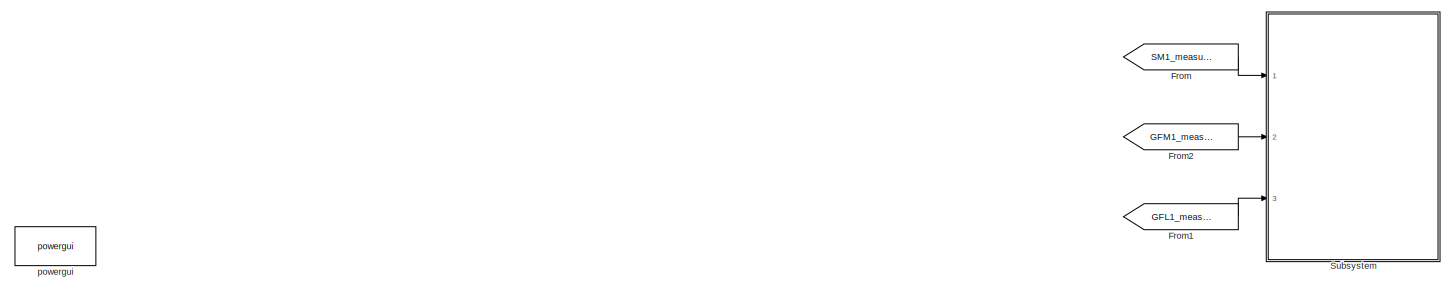
[diagram: root canvas - part 1/7, top center region]
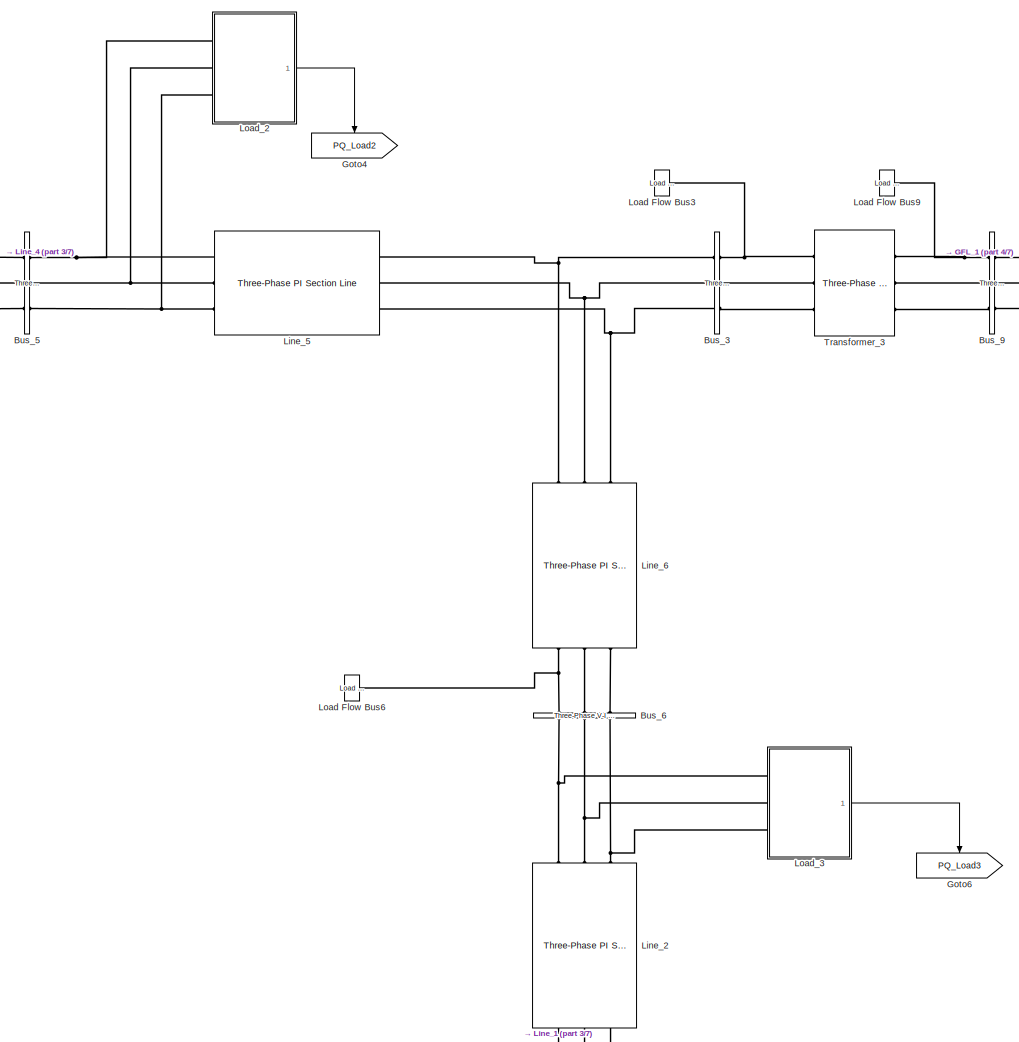
[diagram: root canvas - part 2/7, middle right region]
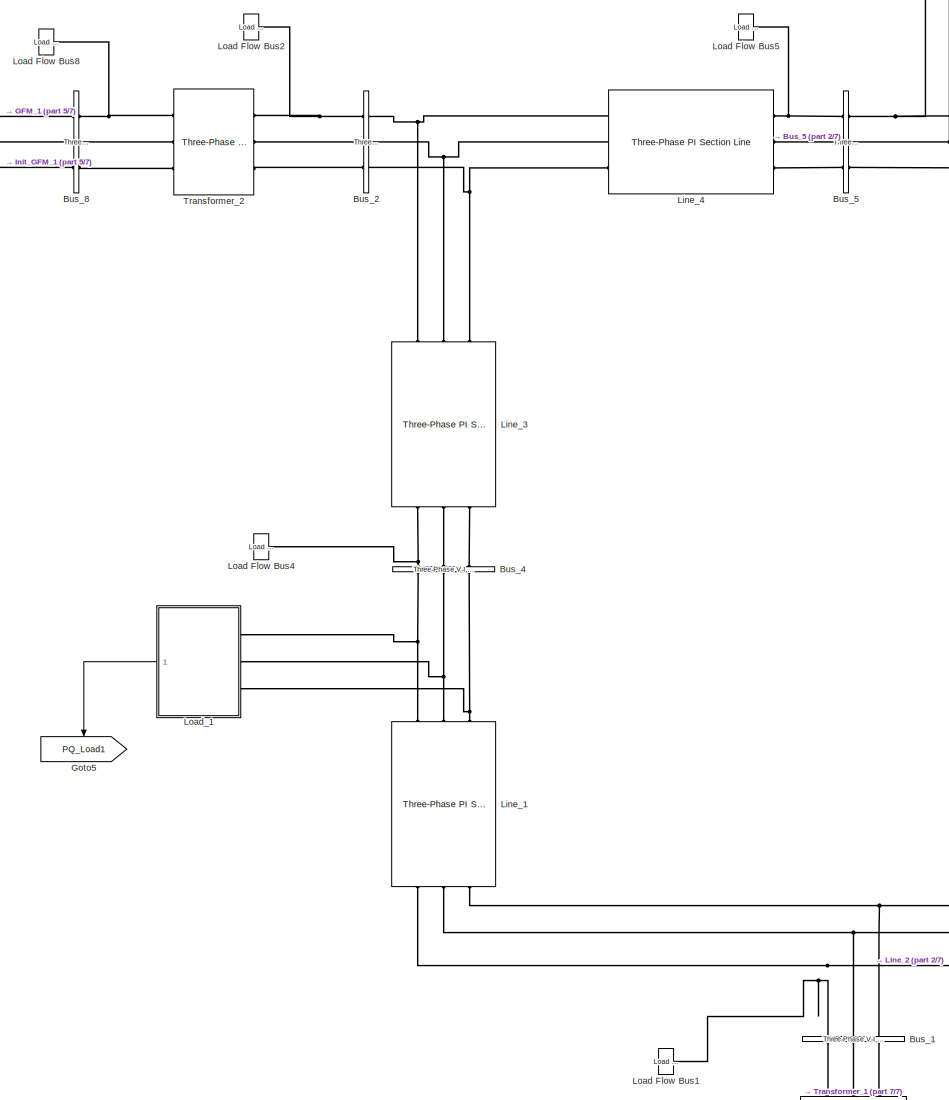
[diagram: root canvas - part 3/7, central region]
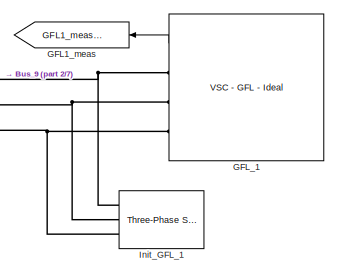
[diagram: root canvas - part 4/7, middle right region]
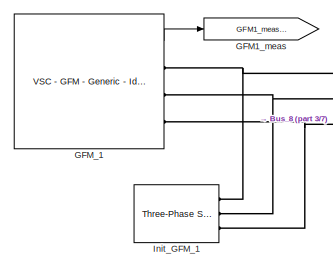
[diagram: root canvas - part 5/7, middle left region]
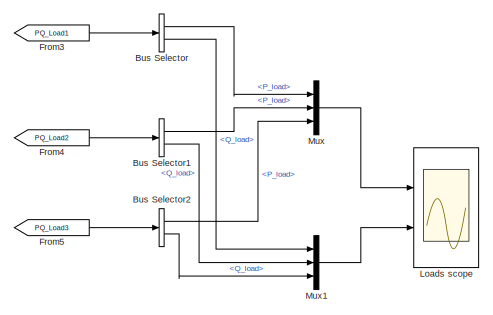
[diagram: root canvas - part 6/7, bottom left region]
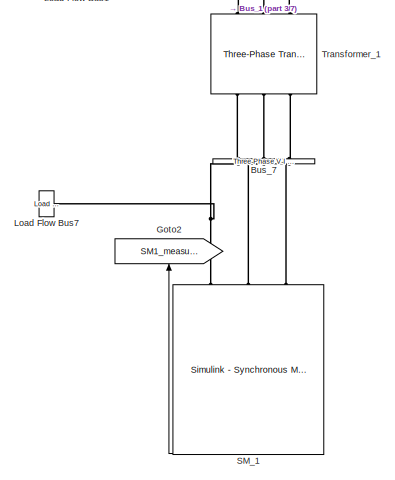
[diagram: root canvas - part 7/7, bottom center region]
MODEL slx_f622fb1c2d94
KIND model
CONFIG AbsTol = auto
CONFIG EnableMultiTasking = off
CONFIG FixedStep = auto
CONFIG MaxStep = auto
CONFIG MinStep = auto
CONFIG RelTol = 1e-3
CONFIG SampleTimeConstraint = Unconstrained
CONFIG SolverName = VariableStepAuto
CONFIG StartTime = 0.0
CONFIG StopTime = simlt.T_stop
BLOCK [BusSelector] Bus Selector
  OutputSignals = P_load,Q_load
  Ports = [1, 2]
BLOCK [BusSelector] Bus Selector1
  OutputSignals = P_load,Q_load
  Ports = [1, 2]
BLOCK [BusSelector] Bus Selector2
  OutputSignals = P_load,Q_load
  Ports = [1, 2]
BLOCK [Reference] Bus_1  REF=powerlib/Measurements/Three-Phase
V-I Measurement
  NameLocation = left
  Ports = [0, 0, 0, 0, 0, 3, 3]
  SourceBlock = powerlib/Measurements/Three-Phase\nV-I Measurement
  SourceProductBaseCode = PS
  SourceType = Three-Phase VI Measurement
BLOCK [Reference] Bus_2  REF=powerlib/Measurements/Three-Phase
V-I Measurement
  Ports = [0, 0, 0, 0, 0, 3, 3]
  SourceBlock = powerlib/Measurements/Three-Phase\nV-I Measurement
  SourceProductBaseCode = PS
  SourceType = Three-Phase VI Measurement
BLOCK [Reference] Bus_3  REF=powerlib/Measurements/Three-Phase
V-I Measurement
  Ports = [0, 0, 0, 0, 0, 3, 3]
  SourceBlock = powerlib/Measurements/Three-Phase\nV-I Measurement
  SourceProductBaseCode = PS
  SourceType = Three-Phase VI Measurement
BLOCK [Reference] Bus_4  REF=powerlib/Measurements/Three-Phase
V-I Measurement
  NameLocation = left
  Ports = [0, 0, 0, 0, 0, 3, 3]
  SourceBlock = powerlib/Measurements/Three-Phase\nV-I Measurement
  SourceProductBaseCode = PS
  SourceType = Three-Phase VI Measurement
BLOCK [Reference] Bus_5  REF=powerlib/Measurements/Three-Phase
V-I Measurement
  Ports = [0, 0, 0, 0, 0, 3, 3]
  SourceBlock = powerlib/Measurements/Three-Phase\nV-I Measurement
  SourceProductBaseCode = PS
  SourceType = Three-Phase VI Measurement
BLOCK [Reference] Bus_6  REF=powerlib/Measurements/Three-Phase
V-I Measurement
  NameLocation = left
  Ports = [0, 0, 0, 0, 0, 3, 3]
  SourceBlock = powerlib/Measurements/Three-Phase\nV-I Measurement
  SourceProductBaseCode = PS
  SourceType = Three-Phase VI Measurement
BLOCK [Reference] Bus_7  REF=powerlib/Measurements/Three-Phase
V-I Measurement
  NameLocation = left
  Ports = [0, 0, 0, 0, 0, 3, 3]
  SourceBlock = powerlib/Measurements/Three-Phase\nV-I Measurement
  SourceProductBaseCode = PS
  SourceType = Three-Phase VI Measurement
BLOCK [Reference] Bus_8  REF=powerlib/Measurements/Three-Phase
V-I Measurement
  Ports = [0, 0, 0, 0, 0, 3, 3]
  SourceBlock = powerlib/Measurements/Three-Phase\nV-I Measurement
  SourceProductBaseCode = PS
  SourceType = Three-Phase VI Measurement
BLOCK [Reference] Bus_9  REF=powerlib/Measurements/Three-Phase
V-I Measurement
  Ports = [0, 0, 0, 0, 0, 3, 3]
  SourceBlock = powerlib/Measurements/Three-Phase\nV-I Measurement
  SourceProductBaseCode = PS
  SourceType = Three-Phase VI Measurement
BLOCK [From] From
  GotoTag = SM1_measurements
BLOCK [From] From1
  GotoTag = GFL1_measurements
  NameLocation = top
BLOCK [From] From2
  GotoTag = GFM1_measurements
  NameLocation = top
BLOCK [From] From3
  GotoTag = PQ_Load1
  NameLocation = top
BLOCK [From] From4
  GotoTag = PQ_Load2
  NameLocation = top
BLOCK [From] From5
  GotoTag = PQ_Load3
  NameLocation = top
BLOCK [Goto] GFL1_meas
  GotoTag = GFL1_measurements
  NameLocation = top
BLOCK [Reference] GFL_1  REF=G2ELib_V1/DC//AC Converters/Voltage Source Converters (VSC)/Grid-Following VSC (GFL)/VSC - GFL - Ideal
  Ports = [0, 1, 0, 0, 0, 0, 3]
  SourceBlock = G2ELib_V1/DC//AC Converters/Voltage Source Converters (VSC)/Grid-Following VSC (GFL)/VSC - GFL - Ideal
BLOCK [Goto] GFM1_meas
  GotoTag = GFM1_measurements
  NameLocation = top
BLOCK [Reference] GFM_1  REF=G2ELib_V1/DC//AC Converters/Voltage Source Converters (VSC)/Grid-Forming VSC (GFM)/VSC - GFM - Generic - Ideal
  Ports = [0, 1, 0, 0, 0, 0, 3]
  SourceBlock = G2ELib_V1/DC//AC Converters/Voltage Source Converters (VSC)/Grid-Forming VSC (GFM)/VSC - GFM - Generic - Ideal
BLOCK [Goto] Goto2
  GotoTag = SM1_measurements
  NameLocation = right
BLOCK [Goto] Goto4
  GotoTag = PQ_Load2
  NameLocation = right
BLOCK [Goto] Goto5
  GotoTag = PQ_Load1
  NameLocation = right
BLOCK [Goto] Goto6
  GotoTag = PQ_Load3
  NameLocation = right
BLOCK [Reference] Init_GFL_1  REF=powerlib/Electrical
Sources/Three-Phase Source
  Commented = on
  Ports = [0, 0, 0, 0, 0, 0, 3]
  SourceBlock = powerlib/Electrical\nSources/Three-Phase Source
  SourceProductBaseCode = PS
  SourceType = Three-Phase Source
BLOCK [Reference] Init_GFM_1  REF=powerlib/Electrical
Sources/Three-Phase Source
  Commented = on
  Ports = [0, 0, 0, 0, 0, 0, 3]
  SourceBlock = powerlib/Electrical\nSources/Three-Phase Source
  SourceProductBaseCode = PS
  SourceType = Three-Phase Source
BLOCK [Reference] Line_1  REF=powerlib/Elements/Three-Phase
PI Section Line
  AttributesFormatString = \n
  NameLocation = left
  Ports = [0, 0, 0, 0, 0, 3, 3]
  SourceBlock = powerlib/Elements/Three-Phase\nPI Section Line
  SourceProductBaseCode = PS
  SourceType = Three-Phase PI Section Line
BLOCK [Reference] Line_2  REF=powerlib/Elements/Three-Phase
PI Section Line
  AttributesFormatString = \n
  NameLocation = left
  Ports = [0, 0, 0, 0, 0, 3, 3]
  SourceBlock = powerlib/Elements/Three-Phase\nPI Section Line
  SourceProductBaseCode = PS
  SourceType = Three-Phase PI Section Line
BLOCK [Reference] Line_3  REF=powerlib/Elements/Three-Phase
PI Section Line
  AttributesFormatString = \n
  NameLocation = left
  Ports = [0, 0, 0, 0, 0, 3, 3]
  SourceBlock = powerlib/Elements/Three-Phase\nPI Section Line
  SourceProductBaseCode = PS
  SourceType = Three-Phase PI Section Line
BLOCK [Reference] Line_4  REF=powerlib/Elements/Three-Phase
PI Section Line
  AttributesFormatString = \n
  Ports = [0, 0, 0, 0, 0, 3, 3]
  SourceBlock = powerlib/Elements/Three-Phase\nPI Section Line
  SourceProductBaseCode = PS
  SourceType = Three-Phase PI Section Line
BLOCK [Reference] Line_5  REF=powerlib/Elements/Three-Phase
PI Section Line
  AttributesFormatString = \n
  Ports = [0, 0, 0, 0, 0, 3, 3]
  SourceBlock = powerlib/Elements/Three-Phase\nPI Section Line
  SourceProductBaseCode = PS
  SourceType = Three-Phase PI Section Line
BLOCK [Reference] Line_6  REF=powerlib/Elements/Three-Phase
PI Section Line
  AttributesFormatString = \n
  NameLocation = left
  Ports = [0, 0, 0, 0, 0, 3, 3]
  SourceBlock = powerlib/Elements/Three-Phase\nPI Section Line
  SourceProductBaseCode = PS
  SourceType = Three-Phase PI Section Line
BLOCK [Reference] Load Flow Bus1  REF=powerlib/Measurements/Load Flow Bus
  AttributesFormatString = %<ID>\n%<Vbase>V\n%<VLF>pu\n%<angleLF>deg.
  NameLocation = top
  Ports = [0, 0, 0, 0, 0, 1]
  SourceBlock = powerlib/Measurements/Load Flow Bus
  SourceProductBaseCode = PS
  SourceType = Load Flow Bus
BLOCK [Reference] Load Flow Bus2  REF=powerlib/Measurements/Load Flow Bus
  AttributesFormatString = %<ID>\n%<Vbase>V\n%<VLF>pu\n%<angleLF>deg.
  NameLocation = top
  Ports = [0, 0, 0, 0, 0, 1]
  SourceBlock = powerlib/Measurements/Load Flow Bus
  SourceProductBaseCode = PS
  SourceType = Load Flow Bus
BLOCK [Reference] Load Flow Bus3  REF=powerlib/Measurements/Load Flow Bus
  AttributesFormatString = %<ID>\n%<Vbase>V\n%<VLF>pu\n%<angleLF>deg.
  NameLocation = top
  Ports = [0, 0, 0, 0, 0, 1]
  SourceBlock = powerlib/Measurements/Load Flow Bus
  SourceProductBaseCode = PS
  SourceType = Load Flow Bus
BLOCK [Reference] Load Flow Bus4  REF=powerlib/Measurements/Load Flow Bus
  AttributesFormatString = %<ID>\n%<Vbase>V\n%<VLF>pu\n%<angleLF>deg.
  NameLocation = top
  Ports = [0, 0, 0, 0, 0, 1]
  SourceBlock = powerlib/Measurements/Load Flow Bus
  SourceProductBaseCode = PS
  SourceType = Load Flow Bus
BLOCK [Reference] Load Flow Bus5  REF=powerlib/Measurements/Load Flow Bus
  AttributesFormatString = %<ID>\n%<Vbase>V\n%<VLF>pu\n%<angleLF>deg.
  NameLocation = top
  Ports = [0, 0, 0, 0, 0, 1]
  SourceBlock = powerlib/Measurements/Load Flow Bus
  SourceProductBaseCode = PS
  SourceType = Load Flow Bus
BLOCK [Reference] Load Flow Bus6  REF=powerlib/Measurements/Load Flow Bus
  AttributesFormatString = %<ID>\n%<Vbase>V\n%<VLF>pu\n%<angleLF>deg.
  NameLocation = top
  Ports = [0, 0, 0, 0, 0, 1]
  SourceBlock = powerlib/Measurements/Load Flow Bus
  SourceProductBaseCode = PS
  SourceType = Load Flow Bus
BLOCK [Reference] Load Flow Bus7  REF=powerlib/Measurements/Load Flow Bus
  AttributesFormatString = %<ID>\n%<Vbase>V\n%<VLF>pu\n%<angleLF>deg.
  NameLocation = top
  Ports = [0, 0, 0, 0, 0, 1]
  SourceBlock = powerlib/Measurements/Load Flow Bus
  SourceProductBaseCode = PS
  SourceType = Load Flow Bus
BLOCK [Reference] Load Flow Bus8  REF=powerlib/Measurements/Load Flow Bus
  AttributesFormatString = %<ID>\n%<Vbase>V\n%<VLF>pu\n%<angleLF>deg.
  NameLocation = top
  Ports = [0, 0, 0, 0, 0, 1]
  SourceBlock = powerlib/Measurements/Load Flow Bus
  SourceProductBaseCode = PS
  SourceType = Load Flow Bus
BLOCK [Reference] Load Flow Bus9  REF=powerlib/Measurements/Load Flow Bus
  AttributesFormatString = %<ID>\n%<Vbase>V\n%<VLF>pu\n%<angleLF>deg.
  NameLocation = top
  Ports = [0, 0, 0, 0, 0, 1]
  SourceBlock = powerlib/Measurements/Load Flow Bus
  SourceProductBaseCode = PS
  SourceType = Load Flow Bus
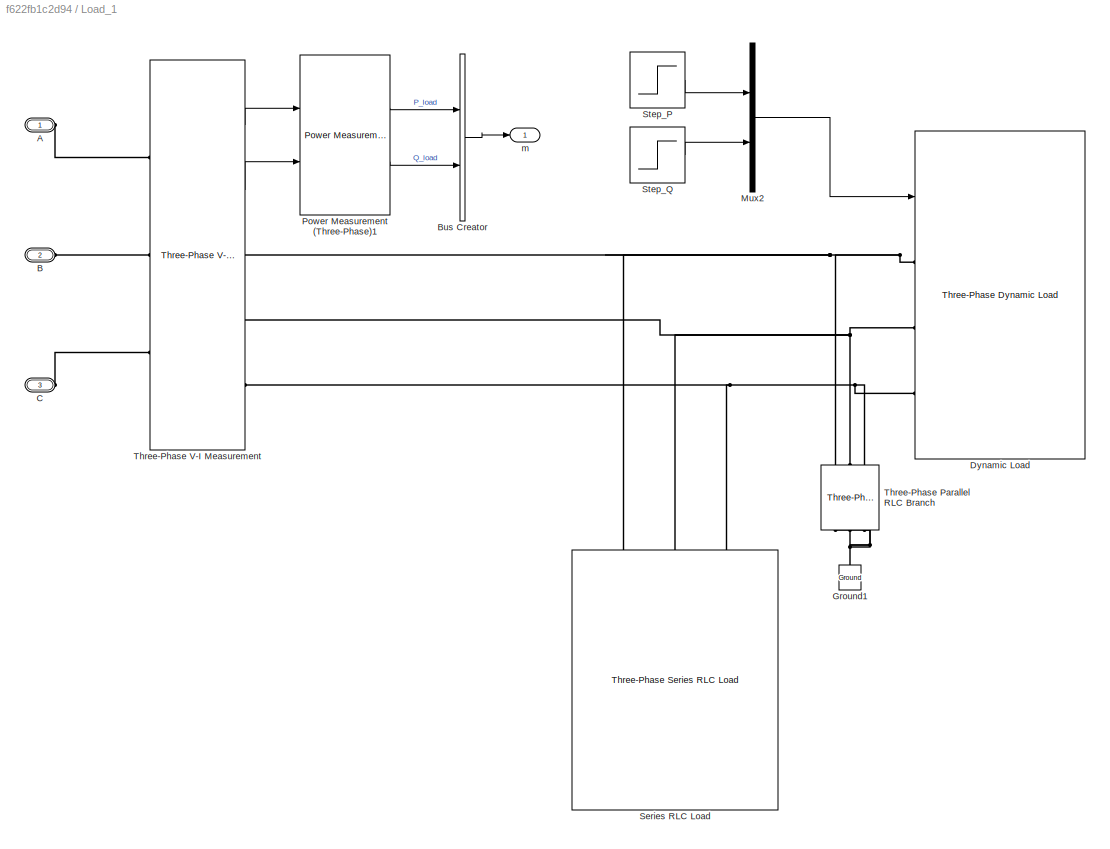
BLOCK [SubSystem] Load_1
  Ports = [0, 1, 0, 0, 0, 3]
  RequestExecContextInheritance = off
BLOCK [PMIOPort] Load_1/A
  Side = Left
BLOCK [PMIOPort] Load_1/B
  Port = 2
  Side = Left
BLOCK [BusCreator] Load_1/Bus Creator
  DisplayOption = bar
  InheritFromInputs = on
  Inputs = 2
  Ports = [2, 1]
BLOCK [PMIOPort] Load_1/C
  Port = 3
  Side = Left
BLOCK [Reference] Load_1/Dynamic Load  REF=powerlib/Elements/Three-Phase
Dynamic Load
  Ports = [1, 1, 0, 0, 0, 3]
  SourceBlock = powerlib/Elements/Three-Phase\nDynamic Load
  SourceProductBaseCode = PS
  SourceType = Three-Phase Dynamic Load
BLOCK [Reference] Load_1/Ground1  REF=powerlib/Elements/Ground
  NameLocation = right
  Ports = [0, 0, 0, 0, 0, 1]
  SourceBlock = powerlib/Elements/Ground
  SourceProductBaseCode = PS
  SourceType = Ground
BLOCK [Mux] Load_1/Mux2
  DisplayOption = bar
  Inputs = 2
  Ports = [2, 1]
BLOCK [Reference] Load_1/Power Measurement (Three-Phase)1  REF=eePowerMeasurement/Power Measurement
(Three-Phase)
  Ports = [2, 2]
  SourceBlock = eePowerMeasurement/Power Measurement\n(Three-Phase)
  SourceProductBaseCode = PS
  SourceType = Power Measurement (Three-Phase)
BLOCK [Reference] Load_1/Series RLC Load  REF=powerlib/Elements/Three-Phase
Series RLC Load
  AttributesFormatString = \n
  Ports = [0, 0, 0, 0, 0, 3]
  SourceBlock = powerlib/Elements/Three-Phase\nSeries RLC Load
  SourceProductBaseCode = PS
  SourceType = Three-Phase Series RLC Load
BLOCK [Step] Load_1/Step_P
  SampleTime = 0
BLOCK [Step] Load_1/Step_Q
  SampleTime = 0
BLOCK [Reference] Load_1/Three-Phase Parallel RLC Branch  REF=powerlib/Elements/Three-Phase
Parallel RLC Branch
  AttributesFormatString = \n
  NameLocation = left
  Ports = [0, 0, 0, 0, 0, 3, 3]
  SourceBlock = powerlib/Elements/Three-Phase\nParallel RLC Branch
  SourceProductBaseCode = PS
  SourceType = Three-Phase Parallel RLC Branch
BLOCK [Reference] Load_1/Three-Phase V-I Measurement  REF=powerlib/Measurements/Three-Phase
V-I Measurement
  Ports = [0, 2, 0, 0, 0, 3, 3]
  SourceBlock = powerlib/Measurements/Three-Phase\nV-I Measurement
  SourceProductBaseCode = PS
  SourceType = Three-Phase VI Measurement
BLOCK [Outport] Load_1/m
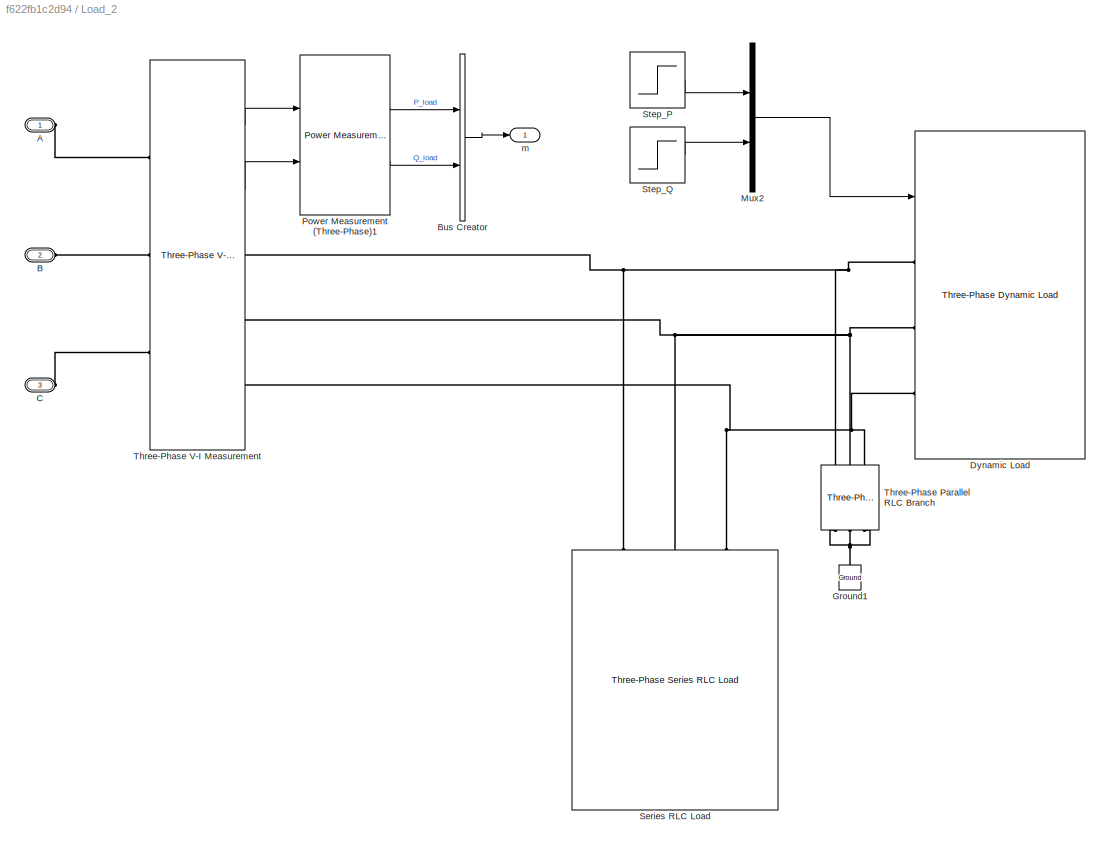
BLOCK [SubSystem] Load_2
  Ports = [0, 1, 0, 0, 0, 3]
  RequestExecContextInheritance = off
BLOCK [PMIOPort] Load_2/A
  Side = Left
BLOCK [PMIOPort] Load_2/B
  Port = 2
  Side = Left
BLOCK [BusCreator] Load_2/Bus Creator
  DisplayOption = bar
  InheritFromInputs = on
  Inputs = 2
  Ports = [2, 1]
BLOCK [PMIOPort] Load_2/C
  Port = 3
  Side = Left
BLOCK [Reference] Load_2/Dynamic Load  REF=powerlib/Elements/Three-Phase
Dynamic Load
  Ports = [1, 1, 0, 0, 0, 3]
  SourceBlock = powerlib/Elements/Three-Phase\nDynamic Load
  SourceProductBaseCode = PS
  SourceType = Three-Phase Dynamic Load
BLOCK [Reference] Load_2/Ground1  REF=powerlib/Elements/Ground
  NameLocation = right
  Ports = [0, 0, 0, 0, 0, 1]
  SourceBlock = powerlib/Elements/Ground
  SourceProductBaseCode = PS
  SourceType = Ground
BLOCK [Mux] Load_2/Mux2
  DisplayOption = bar
  Inputs = 2
  Ports = [2, 1]
BLOCK [Reference] Load_2/Power Measurement (Three-Phase)1  REF=eePowerMeasurement/Power Measurement
(Three-Phase)
  Ports = [2, 2]
  SourceBlock = eePowerMeasurement/Power Measurement\n(Three-Phase)
  SourceProductBaseCode = PS
  SourceType = Power Measurement (Three-Phase)
BLOCK [Reference] Load_2/Series RLC Load  REF=powerlib/Elements/Three-Phase
Series RLC Load
  AttributesFormatString = \n
  Ports = [0, 0, 0, 0, 0, 3]
  SourceBlock = powerlib/Elements/Three-Phase\nSeries RLC Load
  SourceProductBaseCode = PS
  SourceType = Three-Phase Series RLC Load
BLOCK [Step] Load_2/Step_P
  SampleTime = 0
BLOCK [Step] Load_2/Step_Q
  SampleTime = 0
BLOCK [Reference] Load_2/Three-Phase Parallel RLC Branch  REF=powerlib/Elements/Three-Phase
Parallel RLC Branch
  AttributesFormatString = \n
  NameLocation = left
  Ports = [0, 0, 0, 0, 0, 3, 3]
  SourceBlock = powerlib/Elements/Three-Phase\nParallel RLC Branch
  SourceProductBaseCode = PS
  SourceType = Three-Phase Parallel RLC Branch
BLOCK [Reference] Load_2/Three-Phase V-I Measurement  REF=powerlib/Measurements/Three-Phase
V-I Measurement
  Ports = [0, 2, 0, 0, 0, 3, 3]
  SourceBlock = powerlib/Measurements/Three-Phase\nV-I Measurement
  SourceProductBaseCode = PS
  SourceType = Three-Phase VI Measurement
BLOCK [Outport] Load_2/m
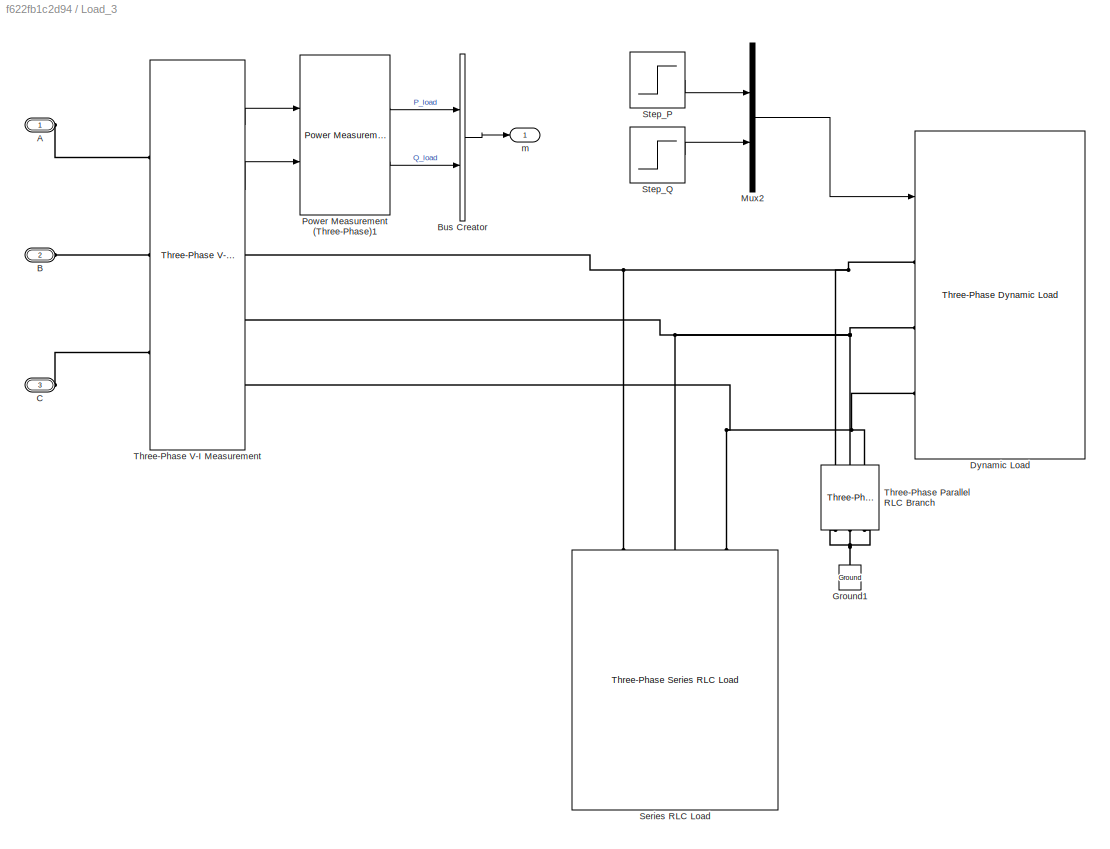
BLOCK [SubSystem] Load_3
  Ports = [0, 1, 0, 0, 0, 3]
  RequestExecContextInheritance = off
BLOCK [PMIOPort] Load_3/A
  Side = Left
BLOCK [PMIOPort] Load_3/B
  Port = 2
  Side = Left
BLOCK [BusCreator] Load_3/Bus Creator
  DisplayOption = bar
  InheritFromInputs = on
  Inputs = 2
  Ports = [2, 1]
BLOCK [PMIOPort] Load_3/C
  Port = 3
  Side = Left
BLOCK [Reference] Load_3/Dynamic Load  REF=powerlib/Elements/Three-Phase
Dynamic Load
  Ports = [1, 1, 0, 0, 0, 3]
  SourceBlock = powerlib/Elements/Three-Phase\nDynamic Load
  SourceProductBaseCode = PS
  SourceType = Three-Phase Dynamic Load
BLOCK [Reference] Load_3/Ground1  REF=powerlib/Elements/Ground
  NameLocation = right
  Ports = [0, 0, 0, 0, 0, 1]
  SourceBlock = powerlib/Elements/Ground
  SourceProductBaseCode = PS
  SourceType = Ground
BLOCK [Mux] Load_3/Mux2
  DisplayOption = bar
  Inputs = 2
  Ports = [2, 1]
BLOCK [Reference] Load_3/Power Measurement (Three-Phase)1  REF=eePowerMeasurement/Power Measurement
(Three-Phase)
  Ports = [2, 2]
  SourceBlock = eePowerMeasurement/Power Measurement\n(Three-Phase)
  SourceProductBaseCode = PS
  SourceType = Power Measurement (Three-Phase)
BLOCK [Reference] Load_3/Series RLC Load  REF=powerlib/Elements/Three-Phase
Series RLC Load
  AttributesFormatString = \n
  Ports = [0, 0, 0, 0, 0, 3]
  SourceBlock = powerlib/Elements/Three-Phase\nSeries RLC Load
  SourceProductBaseCode = PS
  SourceType = Three-Phase Series RLC Load
BLOCK [Step] Load_3/Step_P
  SampleTime = 0
BLOCK [Step] Load_3/Step_Q
  SampleTime = 0
BLOCK [Reference] Load_3/Three-Phase Parallel RLC Branch  REF=powerlib/Elements/Three-Phase
Parallel RLC Branch
  AttributesFormatString = \n
  NameLocation = left
  Ports = [0, 0, 0, 0, 0, 3, 3]
  SourceBlock = powerlib/Elements/Three-Phase\nParallel RLC Branch
  SourceProductBaseCode = PS
  SourceType = Three-Phase Parallel RLC Branch
BLOCK [Reference] Load_3/Three-Phase V-I Measurement  REF=powerlib/Measurements/Three-Phase
V-I Measurement
  Ports = [0, 2, 0, 0, 0, 3, 3]
  SourceBlock = powerlib/Measurements/Three-Phase\nV-I Measurement
  SourceProductBaseCode = PS
  SourceType = Three-Phase VI Measurement
BLOCK [Outport] Load_3/m
BLOCK [Scope] Loads scope
  Commented = on
  Floating = off
  NumInputPorts = 2
  Ports = [2]
  ScopeSpecificationString = Simulink.scopes.TimeScopeBlockCfg('CurrentConfiguration', extmgr.ConfigurationSet(extmgr.Configuration('Core','General UI',true),extmgr.Configuration('Core','Source UI',true),extmgr.Configuration('Sources','WiredSimulink',true,'DataLoggingVariableName','ScopeData1'),extmgr.Configuration('Visuals','Time Domain',true,'SerializedDisplays',{struct('MinYLimReal','-21317102.40017','MaxYLimReal','1918539...<+3066ch>
BLOCK [Mux] Mux
  DisplayOption = bar
  Inputs = 3
  Ports = [3, 1]
BLOCK [Mux] Mux1
  DisplayOption = bar
  Inputs = 3
  Ports = [3, 1]
BLOCK [Reference] SM_1  REF=G2ELib_V1/Synchronous Machine Models/Simulink - Synchronous Machine - Full Controls
  Ports = [0, 1, 0, 0, 0, 3]
  SourceBlock = G2ELib_V1/Synchronous Machine Models/Simulink - Synchronous Machine - Full Controls
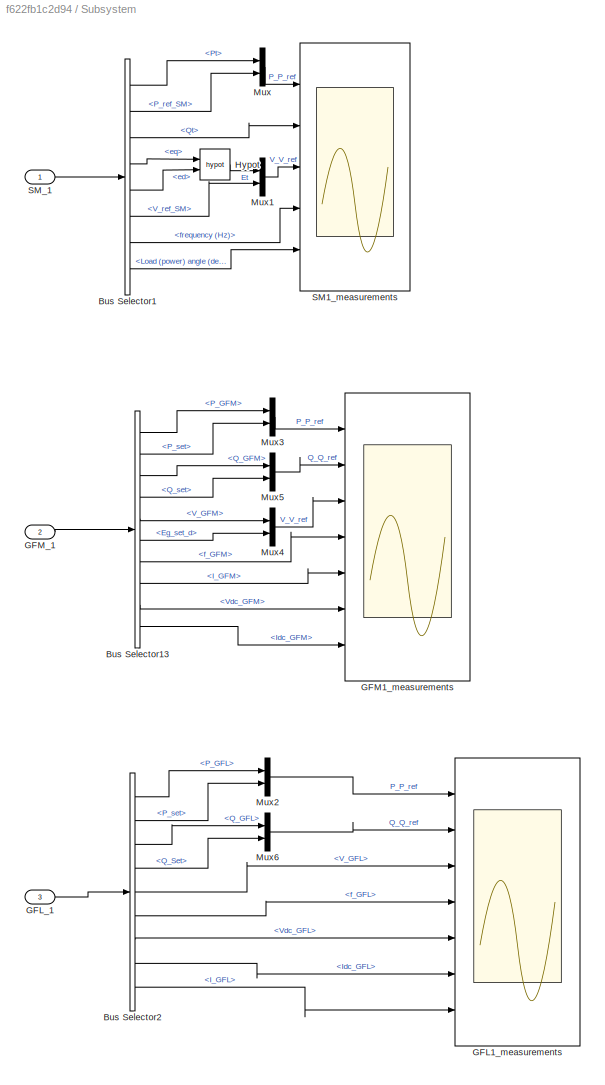
BLOCK [SubSystem] Subsystem
  Ports = [3]
  RequestExecContextInheritance = off
BLOCK [BusSelector] Subsystem/Bus Selector1
  OutputSignals = Terminal Powers (pu).Pt,References (P;V).P_ref_SM,Terminal Powers (pu).Qt,Terminal voltage dq-comp and field voltage (pu).eq,Terminal voltage dq-comp and field voltage (pu).ed,References (P;V).V_ref_SM,frequency (Hz),Load (power) angle (degrees)
  Ports = [1, 8]
BLOCK [BusSelector] Subsystem/Bus Selector13
  OutputSignals = P_GFM,Setpoints.P_set,Q_GFM,Setpoints.Q_set,V_GFM,Setpoints.Eg_set_d,f_GFM,I_GFM,Vdc_GFM,Idc_GFM
  Ports = [1, 10]
BLOCK [BusSelector] Subsystem/Bus Selector2
  OutputSignals = P_GFL,Setpoints.P_set,Q_GFL,Setpoints.Q_Set,V_GFL,f_GFL,Vdc_GFL,Idc_GFL,I_GFL
  Ports = [1, 9]
BLOCK [Scope] Subsystem/GFL1_measurements
  Floating = off
  NumInputPorts = 7
  Ports = [7]
  ScopeSpecificationString = Simulink.scopes.TimeScopeBlockCfg('CurrentConfiguration', extmgr.ConfigurationSet(extmgr.Configuration('Core','General UI',true),extmgr.Configuration('Core','Source UI',true),extmgr.Configuration('Sources','WiredSimulink',true,'DataLoggingVariableName','ScopeData2'),extmgr.Configuration('Visuals','Time Domain',true,'SerializedDisplays',{struct('MinYLimReal','0.95422','MaxYLimReal','1.25198','YLabe...<+6233ch>
BLOCK [Inport] Subsystem/GFL_1
  Port = 3
BLOCK [Scope] Subsystem/GFM1_measurements
  Floating = off
  NumInputPorts = 7
  Ports = [7]
  ScopeSpecificationString = Simulink.scopes.TimeScopeBlockCfg('CurrentConfiguration', extmgr.ConfigurationSet(extmgr.Configuration('Core','General UI',true),extmgr.Configuration('Core','Source UI',true),extmgr.Configuration('Sources','WiredSimulink',true,'DataLoggingVariableName','ScopeData1'),extmgr.Configuration('Visuals','Time Domain',true,'SerializedDisplays',{struct('MinYLimReal','0.91081','MaxYLimReal','1.10265','YLabe...<+6247ch>
BLOCK [Inport] Subsystem/GFM_1
  Port = 2
BLOCK [Math] Subsystem/Hypot
  Operator = hypot
  Ports = [2, 1]
BLOCK [Mux] Subsystem/Mux
  DisplayOption = bar
  Inputs = 2
  Ports = [2, 1]
BLOCK [Mux] Subsystem/Mux1
  DisplayOption = bar
  Inputs = 2
  Ports = [2, 1]
BLOCK [Mux] Subsystem/Mux2
  DisplayOption = bar
  Inputs = 2
  Ports = [2, 1]
BLOCK [Mux] Subsystem/Mux3
  DisplayOption = bar
  Inputs = 2
  Ports = [2, 1]
BLOCK [Mux] Subsystem/Mux4
  DisplayOption = bar
  Inputs = 2
  Ports = [2, 1]
BLOCK [Mux] Subsystem/Mux5
  DisplayOption = bar
  Inputs = 2
  Ports = [2, 1]
BLOCK [Mux] Subsystem/Mux6
  DisplayOption = bar
  Inputs = 2
  Ports = [2, 1]
BLOCK [Scope] Subsystem/SM1_measurements
  Floating = off
  NumInputPorts = 5
  Ports = [5]
  ScopeSpecificationString = Simulink.scopes.TimeScopeBlockCfg('CurrentConfiguration', extmgr.ConfigurationSet(extmgr.Configuration('Core','General UI',true),extmgr.Configuration('Core','Source UI',true),extmgr.Configuration('Sources','WiredSimulink',true),extmgr.Configuration('Visuals','Time Domain',true,'SerializedDisplays',{struct('MinYLimReal','1.03578','MaxYLimReal','1.13417','YLabelReal','','MinYLimMag','1.03578','MaxYL...<+4903ch>
BLOCK [Inport] Subsystem/SM_1
BLOCK [Reference] Transformer_1  REF=powerlib/Elements/Three-Phase
Transformer
(Two Windings)
  NameLocation = right
  Ports = [0, 0, 0, 0, 0, 3, 3]
  SourceBlock = powerlib/Elements/Three-Phase\nTransformer\n(Two Windings)
  SourceProductBaseCode = PS
  SourceType = Three-Phase Transformer (Two Windings)
BLOCK [Reference] Transformer_2  REF=powerlib/Elements/Three-Phase
Transformer
(Two Windings)
  Ports = [0, 0, 0, 0, 0, 3, 3]
  SourceBlock = powerlib/Elements/Three-Phase\nTransformer\n(Two Windings)
  SourceProductBaseCode = PS
  SourceType = Three-Phase Transformer (Two Windings)
BLOCK [Reference] Transformer_3  REF=powerlib/Elements/Three-Phase
Transformer
(Two Windings)
  Ports = [0, 0, 0, 0, 0, 3, 3]
  SourceBlock = powerlib/Elements/Three-Phase\nTransformer\n(Two Windings)
  SourceProductBaseCode = PS
  SourceType = Three-Phase Transformer (Two Windings)
BLOCK [Reference] powergui  REF=powerlib/powergui
  Ports = []
  Priority = 1
  SourceBlock = powerlib/powergui
  SourceProductBaseCode = PS
  SourceType = PSB option menu block
LINE Bus Selector1:1 -> Mux:2
LINE Bus Selector1:2 -> Mux1:2
LINE Bus Selector2:1 -> Mux:3
LINE Bus Selector2:2 -> Mux1:3
LINE Bus Selector:1 -> Mux:1
LINE Bus Selector:2 -> Mux1:1
LINE From1:1 -> Subsystem:3
LINE From2:1 -> Subsystem:2
LINE From3:1 -> Bus Selector:1
LINE From4:1 -> Bus Selector1:1
LINE From5:1 -> Bus Selector2:1
LINE From:1 -> Subsystem:1
LINE GFL_1:1 -> GFL1_meas:1
LINE GFM_1:1 -> GFM1_meas:1
LINE Load_1/Bus Creator:1 -> Load_1/m:1
LINE Load_1/Mux2:1 -> Load_1/Dynamic Load:1
LINE Load_1/Power Measurement (Three-Phase)1:1 -> Load_1/Bus Creator:1
LINE Load_1/Power Measurement (Three-Phase)1:2 -> Load_1/Bus Creator:2
LINE Load_1/Step_P:1 -> Load_1/Mux2:1
LINE Load_1/Step_Q:1 -> Load_1/Mux2:2
LINE Load_1/Three-Phase V-I Measurement:1 -> Load_1/Power Measurement (Three-Phase)1:1
LINE Load_1/Three-Phase V-I Measurement:2 -> Load_1/Power Measurement (Three-Phase)1:2
LINE Load_1:1 -> Goto5:1
LINE Load_2/Bus Creator:1 -> Load_2/m:1
LINE Load_2/Mux2:1 -> Load_2/Dynamic Load:1
LINE Load_2/Power Measurement (Three-Phase)1:1 -> Load_2/Bus Creator:1
LINE Load_2/Power Measurement (Three-Phase)1:2 -> Load_2/Bus Creator:2
LINE Load_2/Step_P:1 -> Load_2/Mux2:1
LINE Load_2/Step_Q:1 -> Load_2/Mux2:2
LINE Load_2/Three-Phase V-I Measurement:1 -> Load_2/Power Measurement (Three-Phase)1:1
LINE Load_2/Three-Phase V-I Measurement:2 -> Load_2/Power Measurement (Three-Phase)1:2
LINE Load_2:1 -> Goto4:1
LINE Load_3/Bus Creator:1 -> Load_3/m:1
LINE Load_3/Mux2:1 -> Load_3/Dynamic Load:1
LINE Load_3/Power Measurement (Three-Phase)1:1 -> Load_3/Bus Creator:1
LINE Load_3/Power Measurement (Three-Phase)1:2 -> Load_3/Bus Creator:2
LINE Load_3/Step_P:1 -> Load_3/Mux2:1
LINE Load_3/Step_Q:1 -> Load_3/Mux2:2
LINE Load_3/Three-Phase V-I Measurement:1 -> Load_3/Power Measurement (Three-Phase)1:1
LINE Load_3/Three-Phase V-I Measurement:2 -> Load_3/Power Measurement (Three-Phase)1:2
LINE Load_3:1 -> Goto6:1
LINE Mux1:1 -> Loads scope:2
LINE Mux:1 -> Loads scope:1
LINE SM_1:1 -> Goto2:1
LINE Subsystem/Bus Selector13:1 -> Subsystem/Mux3:1
LINE Subsystem/Bus Selector13:10 -> Subsystem/GFM1_measurements:7
LINE Subsystem/Bus Selector13:2 -> Subsystem/Mux3:2
LINE Subsystem/Bus Selector13:3 -> Subsystem/Mux5:1
LINE Subsystem/Bus Selector13:4 -> Subsystem/Mux5:2
LINE Subsystem/Bus Selector13:5 -> Subsystem/Mux4:1
LINE Subsystem/Bus Selector13:6 -> Subsystem/Mux4:2
LINE Subsystem/Bus Selector13:7 -> Subsystem/GFM1_measurements:4
LINE Subsystem/Bus Selector13:8 -> Subsystem/GFM1_measurements:5
LINE Subsystem/Bus Selector13:9 -> Subsystem/GFM1_measurements:6
LINE Subsystem/Bus Selector1:1 -> Subsystem/Mux:1
LINE Subsystem/Bus Selector1:2 -> Subsystem/Mux:2
LINE Subsystem/Bus Selector1:3 -> Subsystem/SM1_measurements:2
LINE Subsystem/Bus Selector1:4 -> Subsystem/Hypot:1
LINE Subsystem/Bus Selector1:5 -> Subsystem/Hypot:2
LINE Subsystem/Bus Selector1:6 -> Subsystem/Mux1:2
LINE Subsystem/Bus Selector1:7 -> Subsystem/SM1_measurements:4
LINE Subsystem/Bus Selector1:8 -> Subsystem/SM1_measurements:5
LINE Subsystem/Bus Selector2:1 -> Subsystem/Mux2:1
LINE Subsystem/Bus Selector2:2 -> Subsystem/Mux2:2
LINE Subsystem/Bus Selector2:3 -> Subsystem/Mux6:1
LINE Subsystem/Bus Selector2:4 -> Subsystem/Mux6:2
LINE Subsystem/Bus Selector2:5 -> Subsystem/GFL1_measurements:3
LINE Subsystem/Bus Selector2:6 -> Subsystem/GFL1_measurements:4
LINE Subsystem/Bus Selector2:7 -> Subsystem/GFL1_measurements:5
LINE Subsystem/Bus Selector2:8 -> Subsystem/GFL1_measurements:6
LINE Subsystem/Bus Selector2:9 -> Subsystem/GFL1_measurements:7
LINE Subsystem/GFL_1:1 -> Subsystem/Bus Selector2:1
LINE Subsystem/GFM_1:1 -> Subsystem/Bus Selector13:1
LINE Subsystem/Hypot:1 -> Subsystem/Mux1:1
LINE Subsystem/Mux1:1 -> Subsystem/SM1_measurements:3
LINE Subsystem/Mux2:1 -> Subsystem/GFL1_measurements:1
LINE Subsystem/Mux3:1 -> Subsystem/GFM1_measurements:1
LINE Subsystem/Mux4:1 -> Subsystem/GFM1_measurements:3
LINE Subsystem/Mux5:1 -> Subsystem/GFM1_measurements:2
LINE Subsystem/Mux6:1 -> Subsystem/GFL1_measurements:2
LINE Subsystem/Mux:1 -> Subsystem/SM1_measurements:1
LINE Subsystem/SM_1:1 -> Subsystem/Bus Selector1:1
PNET net1: Bus_1:LConn1 -- Line_1:RConn1 -- Line_2:RConn1 -- Load Flow Bus1:LConn1
PNET net2: Bus_1:LConn2 -- Line_1:RConn2 -- Line_2:RConn2
PNET net3: Bus_1:LConn3 -- Line_1:RConn3 -- Line_2:RConn3
PLINE Bus_1:RConn1 -- Transformer_1:LConn1
PLINE Bus_1:RConn2 -- Transformer_1:LConn2
PLINE Bus_1:RConn3 -- Transformer_1:LConn3
PNET net4: Bus_2:LConn1 -- Load Flow Bus2:LConn1 -- Transformer_2:LConn1
PLINE Bus_2:LConn2 -- Transformer_2:LConn2
PLINE Bus_2:LConn3 -- Transformer_2:LConn3
PNET net5: Bus_2:RConn1 -- Line_3:LConn1 -- Line_4:LConn1
PNET net6: Bus_2:RConn2 -- Line_3:LConn2 -- Line_4:LConn2
PNET net7: Bus_2:RConn3 -- Line_3:LConn3 -- Line_4:LConn3
PNET net8: Bus_3:LConn1 -- Line_5:RConn1 -- Line_6:LConn1
PNET net9: Bus_3:LConn2 -- Line_5:RConn2 -- Line_6:LConn2
PNET net10: Bus_3:LConn3 -- Line_5:RConn3 -- Line_6:LConn3
PNET net11: Bus_3:RConn1 -- Load Flow Bus3:LConn1 -- Transformer_3:LConn1
PLINE Bus_3:RConn2 -- Transformer_3:LConn2
PLINE Bus_3:RConn3 -- Transformer_3:LConn3
PNET net12: Bus_4:LConn1 -- Line_3:RConn1 -- Load Flow Bus4:LConn1
PLINE Bus_4:LConn2 -- Line_3:RConn2
PLINE Bus_4:LConn3 -- Line_3:RConn3
PNET net13: Bus_4:RConn1 -- Line_1:LConn1 -- Load_1:LConn1
PNET net14: Bus_4:RConn2 -- Line_1:LConn2 -- Load_1:LConn2
PNET net15: Bus_4:RConn3 -- Line_1:LConn3 -- Load_1:LConn3
PNET net16: Bus_5:LConn1 -- Line_4:RConn1 -- Load Flow Bus5:LConn1
PLINE Bus_5:LConn2 -- Line_4:RConn2
PLINE Bus_5:LConn3 -- Line_4:RConn3
PNET net17: Bus_5:RConn1 -- Line_5:LConn1 -- Load_2:LConn1
PNET net18: Bus_5:RConn2 -- Line_5:LConn2 -- Load_2:LConn2
PNET net19: Bus_5:RConn3 -- Line_5:LConn3 -- Load_2:LConn3
PNET net20: Bus_6:LConn1 -- Line_6:RConn1 -- Load Flow Bus6:LConn1
PLINE Bus_6:LConn2 -- Line_6:RConn2
PLINE Bus_6:LConn3 -- Line_6:RConn3
PNET net21: Bus_6:RConn1 -- Line_2:LConn1 -- Load_3:LConn1
PNET net22: Bus_6:RConn2 -- Line_2:LConn2 -- Load_3:LConn2
PNET net23: Bus_6:RConn3 -- Line_2:LConn3 -- Load_3:LConn3
PLINE Bus_7:LConn1 -- Transformer_1:RConn1
PLINE Bus_7:LConn2 -- Transformer_1:RConn2
PLINE Bus_7:LConn3 -- Transformer_1:RConn3
PNET net24: Bus_7:RConn1 -- Load Flow Bus7:LConn1 -- SM_1:LConn1
PLINE Bus_7:RConn2 -- SM_1:LConn2
PLINE Bus_7:RConn3 -- SM_1:LConn3
PNET net25: Bus_8:LConn1 -- GFM_1:RConn1 -- Init_GFM_1:RConn1
PNET net26: Bus_8:LConn2 -- GFM_1:RConn2 -- Init_GFM_1:RConn2
PNET net27: Bus_8:LConn3 -- GFM_1:RConn3 -- Init_GFM_1:RConn3
PNET net28: Bus_8:RConn1 -- Load Flow Bus8:LConn1 -- Transformer_2:RConn1
PLINE Bus_8:RConn2 -- Transformer_2:RConn2
PLINE Bus_8:RConn3 -- Transformer_2:RConn3
PNET net29: Bus_9:LConn1 -- Load Flow Bus9:LConn1 -- Transformer_3:RConn1
PLINE Bus_9:LConn2 -- Transformer_3:RConn2
PLINE Bus_9:LConn3 -- Transformer_3:RConn3
PNET net30: Bus_9:RConn1 -- GFL_1:RConn1 -- Init_GFL_1:RConn1
PNET net31: Bus_9:RConn2 -- GFL_1:RConn2 -- Init_GFL_1:RConn2
PNET net32: Bus_9:RConn3 -- GFL_1:RConn3 -- Init_GFL_1:RConn3
PLINE Load_1/A:RConn1 -- Load_1/Three-Phase V-I Measurement:LConn1
PLINE Load_1/B:RConn1 -- Load_1/Three-Phase V-I Measurement:LConn2
PLINE Load_1/C:RConn1 -- Load_1/Three-Phase V-I Measurement:LConn3
PNET net33: Load_1/Dynamic Load:LConn1 -- Load_1/Series RLC Load:LConn1 -- Load_1/Three-Phase Parallel RLC Branch:LConn1 -- Load_1/Three-Phase V-I Measurement:RConn1
PNET net34: Load_1/Dynamic Load:LConn2 -- Load_1/Series RLC Load:LConn2 -- Load_1/Three-Phase Parallel RLC Branch:LConn2 -- Load_1/Three-Phase V-I Measurement:RConn2
PNET net35: Load_1/Dynamic Load:LConn3 -- Load_1/Series RLC Load:LConn3 -- Load_1/Three-Phase Parallel RLC Branch:LConn3 -- Load_1/Three-Phase V-I Measurement:RConn3
PNET net36: Load_1/Ground1:LConn1 -- Load_1/Three-Phase Parallel RLC Branch:RConn1 -- Load_1/Three-Phase Parallel RLC Branch:RConn2 -- Load_1/Three-Phase Parallel RLC Branch:RConn3
PLINE Load_2/A:RConn1 -- Load_2/Three-Phase V-I Measurement:LConn1
PLINE Load_2/B:RConn1 -- Load_2/Three-Phase V-I Measurement:LConn2
PLINE Load_2/C:RConn1 -- Load_2/Three-Phase V-I Measurement:LConn3
PNET net37: Load_2/Dynamic Load:LConn1 -- Load_2/Series RLC Load:LConn1 -- Load_2/Three-Phase Parallel RLC Branch:LConn1 -- Load_2/Three-Phase V-I Measurement:RConn1
PNET net38: Load_2/Dynamic Load:LConn2 -- Load_2/Series RLC Load:LConn2 -- Load_2/Three-Phase Parallel RLC Branch:LConn2 -- Load_2/Three-Phase V-I Measurement:RConn2
PNET net39: Load_2/Dynamic Load:LConn3 -- Load_2/Series RLC Load:LConn3 -- Load_2/Three-Phase Parallel RLC Branch:LConn3 -- Load_2/Three-Phase V-I Measurement:RConn3
PNET net40: Load_2/Ground1:LConn1 -- Load_2/Three-Phase Parallel RLC Branch:RConn1 -- Load_2/Three-Phase Parallel RLC Branch:RConn2 -- Load_2/Three-Phase Parallel RLC Branch:RConn3
PLINE Load_3/A:RConn1 -- Load_3/Three-Phase V-I Measurement:LConn1
PLINE Load_3/B:RConn1 -- Load_3/Three-Phase V-I Measurement:LConn2
PLINE Load_3/C:RConn1 -- Load_3/Three-Phase V-I Measurement:LConn3
PNET net41: Load_3/Dynamic Load:LConn1 -- Load_3/Series RLC Load:LConn1 -- Load_3/Three-Phase Parallel RLC Branch:LConn1 -- Load_3/Three-Phase V-I Measurement:RConn1
PNET net42: Load_3/Dynamic Load:LConn2 -- Load_3/Series RLC Load:LConn2 -- Load_3/Three-Phase Parallel RLC Branch:LConn2 -- Load_3/Three-Phase V-I Measurement:RConn2
PNET net43: Load_3/Dynamic Load:LConn3 -- Load_3/Series RLC Load:LConn3 -- Load_3/Three-Phase Parallel RLC Branch:LConn3 -- Load_3/Three-Phase V-I Measurement:RConn3
PNET net44: Load_3/Ground1:LConn1 -- Load_3/Three-Phase Parallel RLC Branch:RConn1 -- Load_3/Three-Phase Parallel RLC Branch:RConn2 -- Load_3/Three-Phase Parallel RLC Branch:RConn3
note: PNET lines group multi-terminal physical nets as a canonical sorted terminal list (undirected conserving connections); 2-terminal nets keep the pairwise PLINE form
